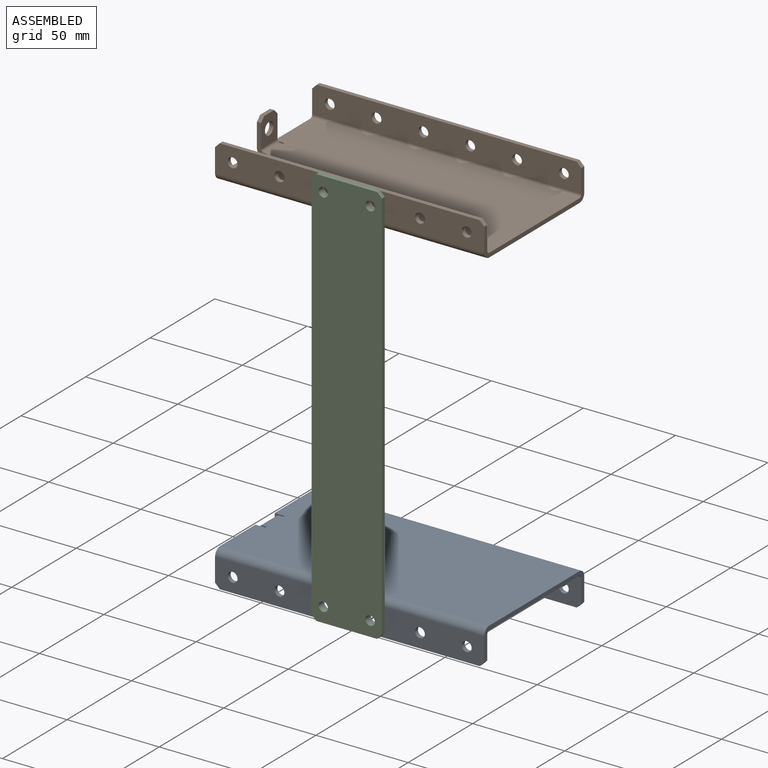
[diagram: assembled view]
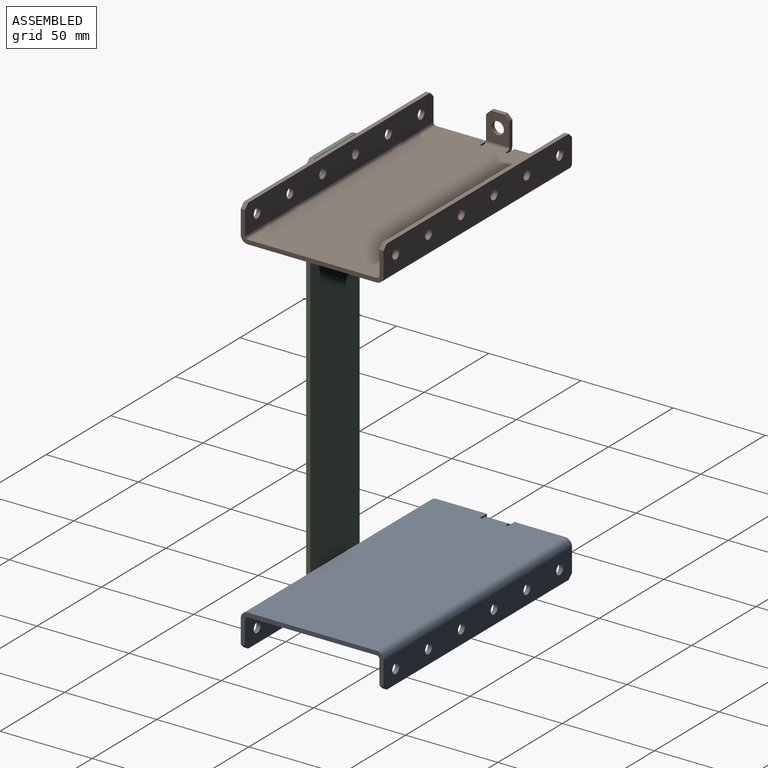
[diagram: assembled view, second angle]
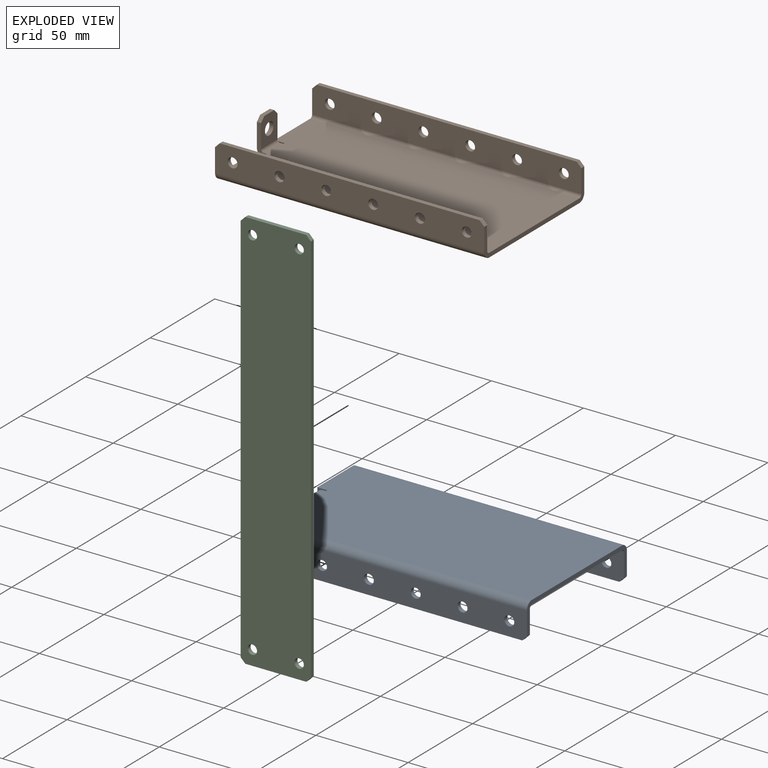
[diagram: exploded view]
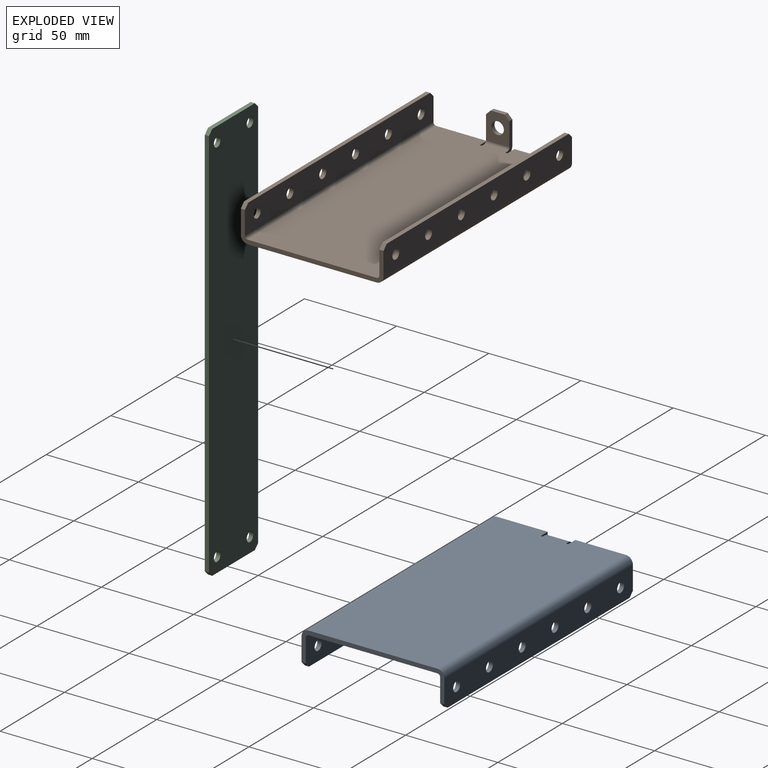
[diagram: exploded view, second angle]
ASSEMBLY  parts=3 mates=2
PART A: 45 faces, bbox 146.1x77.5x19.1 mm
  f0: cylinder r=3.35mm len=6.71mm, axis (-1,0,0), area 48.2mm2, adj f36,f37
  f1: cylinder r=2.67mm len=5.33mm, axis (0,1,0), area 38.3mm2, adj f19,f20
  f2: cylinder r=2.67mm len=5.33mm, axis (0,1,0), area 38.3mm2, adj f24,f25
  f3: cylinder r=2.67mm len=5.33mm, axis (0,1,0), area 38.3mm2, adj f19,f20
  f4: cylinder r=2.67mm len=5.33mm, axis (0,1,0), area 38.3mm2, adj f24,f25
  f5: cylinder r=2.67mm len=5.33mm, axis (0,1,0), area 38.3mm2, adj f19,f20
  f6: cylinder r=2.67mm len=5.33mm, axis (0,1,0), area 38.3mm2, adj f24,f25
  f7: cylinder r=2.67mm len=5.33mm, axis (0,1,0), area 38.3mm2, adj f19,f20
  f8: cylinder r=2.67mm len=5.33mm, axis (0,1,0), area 38.3mm2, adj f24,f25
  f9: cylinder r=2.67mm len=5.33mm, axis (0,1,0), area 38.3mm2, adj f19,f20
  f10: cylinder r=2.67mm len=5.33mm, axis (0,1,0), area 38.3mm2, adj f24,f25
  f11: cylinder r=2.67mm len=5.33mm, axis (0,1,0), area 38.3mm2, adj f19,f20
  f12: cylinder r=2.67mm len=5.33mm, axis (0,1,0), area 38.3mm2, adj f24,f25
  f13: plane 146.05x69.85mm, normal (0,0,1), area 10140.9mm2, adj f15,f16,f18,f23,f27,f28,f29,f30
  f14: plane 146.05x69.85mm, normal (0,0,-1), area 10140.9mm2, adj f15,f16,f17,f22,f27,f28,f29,f30
  f15: plane 31.24x16.51mm, normal (-1,0,0), area 101.3mm2, adj f13,f14,f22,f23,f24,f25,f32,f43
  f16: plane 31.24x16.51mm, normal (-1,0,0), area 101.3mm2, adj f13,f14,f17,f18,f19,f20,f33,f44
  f17: cylinder r=3.81mm len=146.05mm, axis (-1,0,0), area 874.1mm2, adj f14,f16,f19,f27
  f18: cylinder r=1.52mm len=146.05mm, axis (-1,0,0), area 349.6mm2, adj f13,f16,f20,f27
  f19: plane 146.05x15.24mm, normal (0,1,0), area 2085.3mm2, adj f1,f3,f5,f7,f9,f11,f16,f17
  f20: plane 146.05x15.24mm, normal (0,-1,0), area 2085.3mm2, adj f1,f3,f5,f7,f9,f11,f16,f18
  f21: plane 140.97x2.29mm, normal (0,0,1), area 322.3mm2, adj f19,f20,f41,f44
  f22: cylinder r=3.81mm len=146.05mm, axis (1,0,0), area 874.1mm2, adj f14,f15,f24,f27
  f23: cylinder r=1.52mm len=146.05mm, axis (1,0,0), area 349.6mm2, adj f13,f15,f25,f27
  f24: plane 146.05x15.24mm, normal (0,-1,0), area 2085.3mm2, adj f2,f4,f6,f8,f10,f12,f15,f22
  f25: plane 146.05x15.24mm, normal (0,1,0), area 2085.3mm2, adj f2,f4,f6,f8,f10,f12,f15,f23
  f26: plane 140.97x2.29mm, normal (0,0,1), area 322.3mm2, adj f24,f25,f42,f43
  f27: plane 77.47x16.51mm, normal (1,0,0), area 236.9mm2, adj f13,f14,f17,f18,f19,f20,f22,f23
  f28: cylinder r=0.57mm len=2.29mm, axis (0,0,-1), area 4.1mm2, adj f13,f14,f29,f32
  f29: plane 16.51x4.95mm, normal (0,-1,0), area 41.2mm2, adj f13,f14,f28,f34,f35,f36,f37,f39
  f30: plane 16.51x4.95mm, normal (0,1,0), area 41.2mm2, adj f13,f14,f31,f34,f35,f36,f37,f40
  f31: cylinder r=0.57mm len=2.29mm, axis (0,0,-1), area 4.1mm2, adj f13,f14,f30,f33
  f32: plane 4.95x2.29mm, normal (0,1,0), area 11.3mm2, adj f13,f14,f15,f28
  f33: plane 4.95x2.29mm, normal (0,-1,0), area 11.3mm2, adj f13,f14,f16,f31
  f34: cylinder r=3.81mm len=12.7mm, axis (0,-1,0), area 76mm2, adj f14,f29,f30,f36
  f35: cylinder r=1.52mm len=12.7mm, axis (0,-1,0), area 30.4mm2, adj f13,f29,f30,f37
  f36: plane 15.24x12.7mm, normal (-1,0,0), area 151.8mm2, adj f0,f29,f30,f34,f38,f39,f40
  f37: plane 15.24x12.7mm, normal (1,0,0), area 151.8mm2, adj f0,f29,f30,f35,f38,f39,f40
  f38: plane 7.62x2.29mm, normal (0,0,1), area 17.4mm2, adj f36,f37,f39,f40
  f39: plane 2.54x2.54mm, normal (0,-0.71,0.71), area 8.2mm2, adj f29,f36,f37,f38
  f40: plane 2.54x2.54mm, normal (0,0.71,0.71), area 8.2mm2, adj f30,f36,f37,f38
  f41: plane 2.54x2.54mm, normal (0.71,0,0.71), area 8.2mm2, adj f19,f20,f21,f27
  f42: plane 2.54x2.54mm, normal (0.71,0,0.71), area 8.2mm2, adj f24,f25,f26,f27
  f43: plane 2.54x2.54mm, normal (-0.71,0,0.71), area 8.2mm2, adj f15,f24,f25,f26
  f44: plane 2.54x2.54mm, normal (-0.71,0,0.71), area 8.2mm2, adj f16,f19,f20,f21
PART B: same geometry as A
PART C: 14 faces, bbox 219.1x2.3x38.1 mm
  f0: cylinder r=2.54mm len=5.08mm, axis (0,1,0), area 36.5mm2, adj f8,f9
  f1: cylinder r=2.54mm len=5.08mm, axis (0,1,0), area 36.5mm2, adj f8,f9
  f2: cylinder r=2.54mm len=5.08mm, axis (0,1,0), area 36.5mm2, adj f8,f9
  f3: cylinder r=2.54mm len=5.08mm, axis (0,1,0), area 36.5mm2, adj f8,f9
  f4: plane 33.02x2.29mm, normal (1,0,0), area 75.5mm2, adj f8,f9,f12,f13
  f5: plane 214x2.29mm, normal (0,0,-1), area 489.2mm2, adj f8,f9,f10,f13
  f6: plane 33.02x2.29mm, normal (-1,0,0), area 75.5mm2, adj f8,f9,f10,f11
  f7: plane 214x2.29mm, normal (0,0,1), area 489.2mm2, adj f8,f9,f11,f12
  f8: plane 219.08x38.1mm, normal (0,1,0), area 8252.8mm2, adj f0,f1,f2,f3,f4,f5,f6,f7
  f9: plane 219.08x38.1mm, normal (0,-1,0), area 8252.8mm2, adj f0,f1,f2,f3,f4,f5,f6,f7
  f10: plane 2.54x2.54mm, normal (-0.71,0,-0.71), area 8.2mm2, adj f5,f6,f8,f9
  f11: plane 2.54x2.54mm, normal (-0.71,0,0.71), area 8.2mm2, adj f6,f7,f8,f9
  f12: plane 2.54x2.54mm, normal (0.71,0,0.71), area 8.2mm2, adj f4,f7,f8,f9
  f13: plane 2.54x2.54mm, normal (0.71,0,-0.71), area 8.2mm2, adj f4,f5,f8,f9
PLACE A rot(axis=(-1,0,0),180deg) t=(278.36,93.61,-122.48)mm
PLACE B t=(278.36,171.08,55.49)mm fixed
PLACE C rot(axis=(0,-1,0),90deg) t=(202.78,91.33,-33.5)mm
MATE fastened C.f0 <-> A.f5  axis (0,1,0) through (190.08,93.61,-135.1)mm
MATE fastened C.f1 <-> B.f5  axis (0,1,0) through (190.08,93.61,68.1)mm
